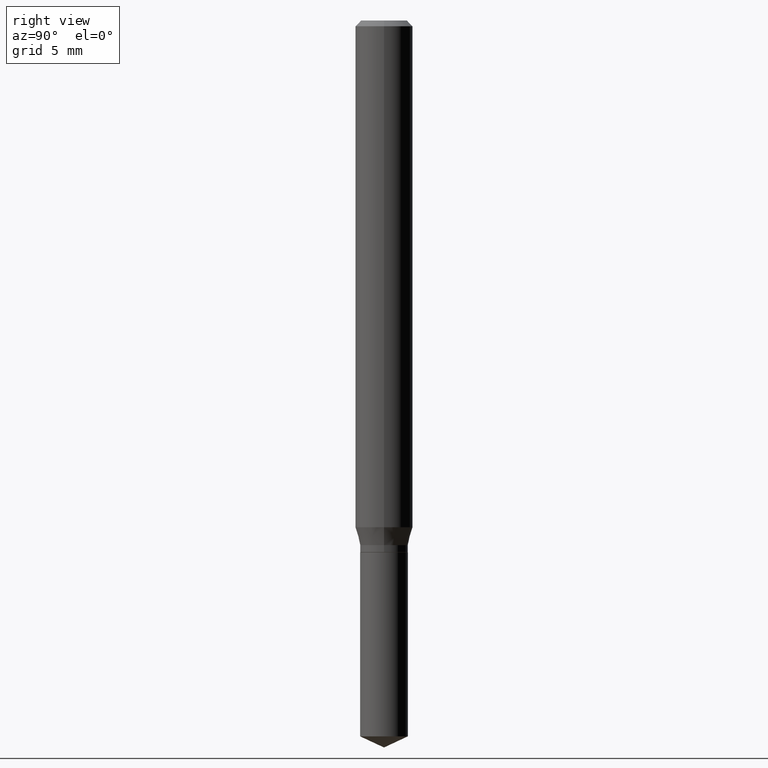
[diagram: clean part render]
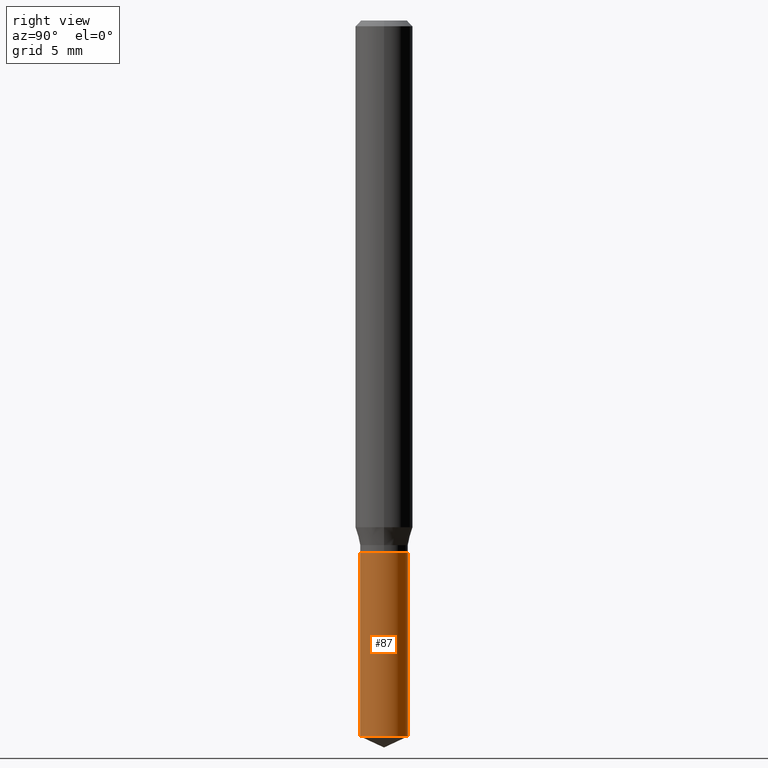
[diagram: same view with one face highlighted and labeled with its STEP entity id]
A machine part, right view. The second image highlights one B-rep face of the part: STEP entity #87.
In plain terms, the highlighted cylindrical surface (edge-blend (fillet) strip) has radius 1.2497 mm, axis along (-0, 0, 1).
Its self-contained STEP definition (entity closure, byte-faithful):
#9 = DIRECTION ( 'NONE',  ( -2.445358326776455510E-29, 3.491639551644474585E-15, 1.000000000000000000 ) ) ;
#13 = AXIS2_PLACEMENT_3D ( 'NONE', #276, #9, #130 ) ;
#36 = CIRCLE ( 'NONE', #13, 0.04920000000000000068 ) ;
#87 = ADVANCED_FACE ( 'NONE', ( #243 ), #374, .T. ) ;
#88 = ORIENTED_EDGE ( 'NONE', *, *, #90, .T. ) ;
#90 = EDGE_CURVE ( 'NONE', #318, #355, #185, .T. ) ;
#99 = ORIENTED_EDGE ( 'NONE', *, *, #483, .F. ) ;
#101 = ORIENTED_EDGE ( 'NONE', *, *, #249, .F. ) ;
#110 = VECTOR ( 'NONE', #485, 39.37007874015748143 ) ;
#120 = AXIS2_PLACEMENT_3D ( 'NONE', #287, #339, #309 ) ;
#129 = VERTEX_POINT ( 'NONE', #418 ) ;
#130 = DIRECTION ( 'NONE',  ( -6.982962677686265922E-15, -1.000000000000000000, 2.776268286244170082E-15 ) ) ;
#148 = CARTESIAN_POINT ( 'NONE',  ( -3.435617637421283351E-16, -0.04920000000000515628, -1.473157663218773727 ) ) ;
#157 = VECTOR ( 'NONE', #369, 39.37007874015748143 ) ;
#185 = CIRCLE ( 'NONE', #408, 0.04920000000000000068 ) ;
#215 = VERTEX_POINT ( 'NONE', #430 ) ;
#243 = FACE_OUTER_BOUND ( 'NONE', #466, .T. ) ;
#249 = EDGE_CURVE ( 'NONE', #129, #215, #36, .T. ) ;
#263 = CARTESIAN_POINT ( 'NONE',  ( 3.495870259940053373E-16, 0.04919999999999487283, -1.473157663218774394 ) ) ;
#276 = CARTESIAN_POINT ( 'NONE',  ( 2.676565608369631794E-29, -3.821426325363822773E-15, -1.094499999999999806 ) ) ;
#287 = CARTESIAN_POINT ( 'NONE',  ( 2.676565608369631794E-29, -3.821426325363822773E-15, -1.094499999999999806 ) ) ;
#290 = LINE ( 'NONE', #478, #110 ) ;
#309 = DIRECTION ( 'NONE',  ( -6.982962677686265922E-15, -1.000000000000000000, 2.776268286244170082E-15 ) ) ;
#317 = ORIENTED_EDGE ( 'NONE', *, *, #459, .T. ) ;
#318 = VERTEX_POINT ( 'NONE', #148 ) ;
#324 = LINE ( 'NONE', #330, #157 ) ;
#330 = CARTESIAN_POINT ( 'NONE',  ( -3.435617637421375056E-16, -0.04920000000000382401, -1.094499999999999806 ) ) ;
#339 = DIRECTION ( 'NONE',  ( -2.445358326776455510E-29, 3.491639551644474585E-15, 1.000000000000000000 ) ) ;
#355 = VERTEX_POINT ( 'NONE', #263 ) ;
#369 = DIRECTION ( 'NONE',  ( -2.445358326776455790E-29, 3.491639551644474585E-15, 1.000000000000000000 ) ) ;
#374 = CYLINDRICAL_SURFACE ( 'NONE', #120, 0.04920000000000000068 ) ;
#381 = DIRECTION ( 'NONE',  ( -6.982962677686265922E-15, -1.000000000000000000, 5.552536572488340164E-15 ) ) ;
#386 = DIRECTION ( 'NONE',  ( -2.445358326776455510E-29, 3.491639551644474585E-15, 1.000000000000000000 ) ) ;
#408 = AXIS2_PLACEMENT_3D ( 'NONE', #447, #386, #381 ) ;
#418 = CARTESIAN_POINT ( 'NONE',  ( -3.435617637421375056E-16, -0.04920000000000382401, -1.094499999999999806 ) ) ;
#430 = CARTESIAN_POINT ( 'NONE',  ( 3.495870259940053373E-16, 0.04919999999999617735, -1.094500000000000028 ) ) ;
#447 = CARTESIAN_POINT ( 'NONE',  ( 3.602519278119375735E-29, -5.143562398791767883E-15, -1.473157663218774172 ) ) ;
#459 = EDGE_CURVE ( 'NONE', #355, #215, #290, .T. ) ;
#466 = EDGE_LOOP ( 'NONE', ( #88, #317, #101, #99 ) ) ;
#478 = CARTESIAN_POINT ( 'NONE',  ( 3.495870259939959696E-16, 0.04919999999999617735, -1.094500000000000028 ) ) ;
#483 = EDGE_CURVE ( 'NONE', #318, #129, #324, .T. ) ;
#485 = DIRECTION ( 'NONE',  ( -2.445358326776455790E-29, 3.491639551644474585E-15, 1.000000000000000000 ) ) ;